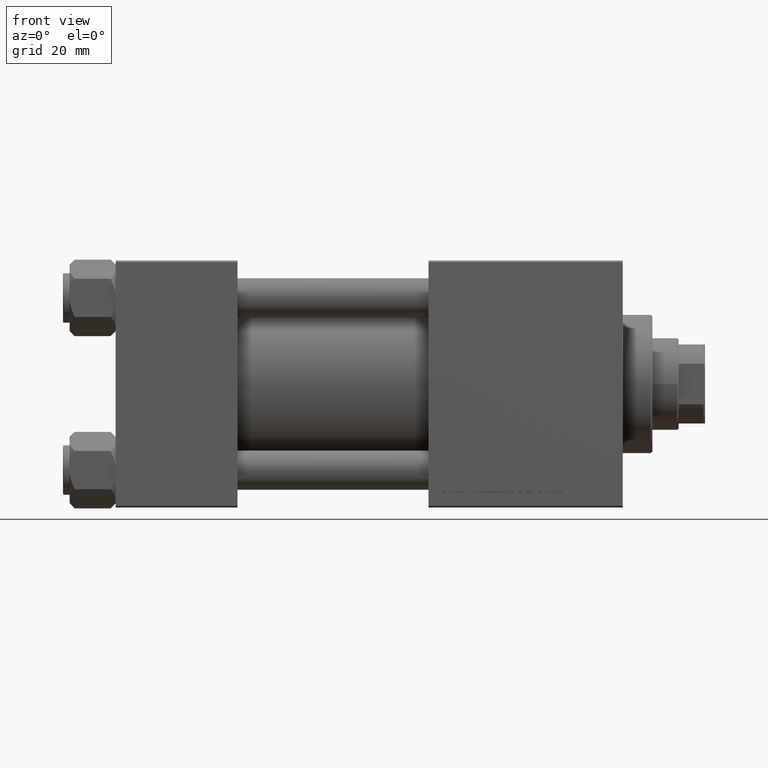
[diagram: clean part render]
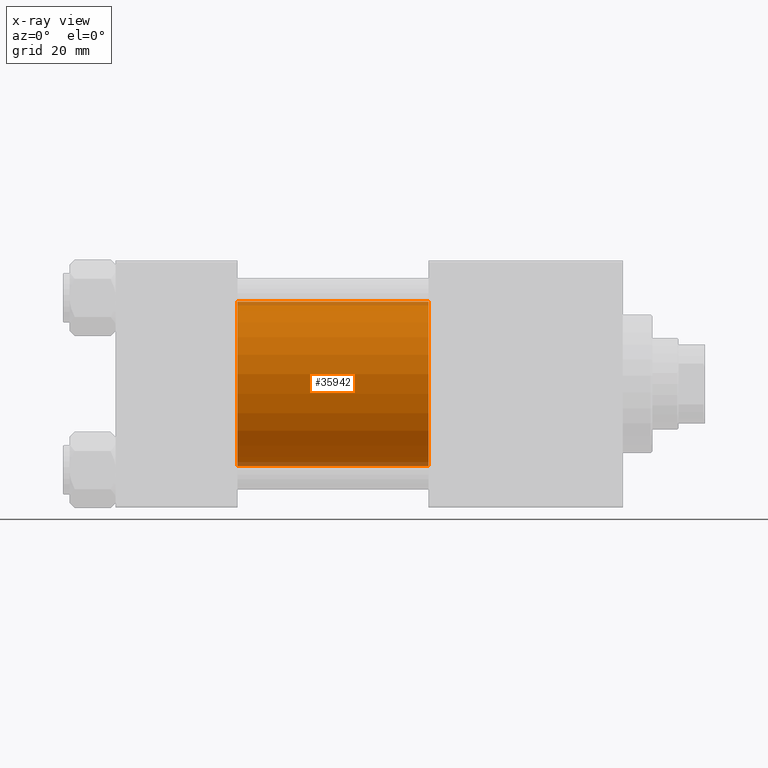
[diagram: x-ray — body ghosted, one internal face saturated and labeled with its STEP entity id]
A machine part, front view, then the same camera in x-ray: the body is ghosted and one INTERNAL B-rep face — a face not visible from any outside direction — is saturated and labeled: STEP entity #35942.
In plain terms, the highlighted cylindrical surface (partial cylindrical patch) has radius 25 mm, axis along (-1, -0, -0).
Its self-contained STEP definition (entity closure, byte-faithful):
#145 = CARTESIAN_POINT ( 'NONE',  ( 95.00000000000000000, -2.602085213965210642E-15, 25.00000000000000000 ) ) ;
#1905 = AXIS2_PLACEMENT_3D ( 'NONE', #34452, #14852, #38787 ) ;
#6624 = LINE ( 'NONE', #22924, #11768 ) ;
#8886 = DIRECTION ( 'NONE',  ( 0.000000000000000000, 0.000000000000000000, 1.000000000000000000 ) ) ;
#9353 = VECTOR ( 'NONE', #45801, 1000.000000000000000 ) ;
#11768 = VECTOR ( 'NONE', #18858, 1000.000000000000000 ) ;
#14852 = DIRECTION ( 'NONE',  ( 1.000000000000000000, 0.000000000000000000, 0.000000000000000000 ) ) ;
#15512 = VERTEX_POINT ( 'NONE', #42343 ) ;
#16144 = ORIENTED_EDGE ( 'NONE', *, *, #48350, .F. ) ;
#16166 = AXIS2_PLACEMENT_3D ( 'NONE', #24176, #16543, #8886 ) ;
#16284 = FACE_OUTER_BOUND ( 'NONE', #40164, .T. ) ;
#16543 = DIRECTION ( 'NONE',  ( -1.000000000000000000, -0.000000000000000000, -0.000000000000000000 ) ) ;
#18588 = LINE ( 'NONE', #145, #9353 ) ;
#18858 = DIRECTION ( 'NONE',  ( -1.000000000000000000, -0.000000000000000000, -0.000000000000000000 ) ) ;
#21633 = CARTESIAN_POINT ( 'NONE',  ( 37.00000000000000000, -2.602085213965210642E-15, 25.00000000000000000 ) ) ;
#21816 = CARTESIAN_POINT ( 'NONE',  ( 95.00000000000000000, 4.595317839031718093E-16, -25.00000000000000000 ) ) ;
#22513 = EDGE_CURVE ( 'NONE', #25567, #36231, #23863, .T. ) ;
#22770 = DIRECTION ( 'NONE',  ( 0.000000000000000000, 0.000000000000000000, -1.000000000000000000 ) ) ;
#22924 = CARTESIAN_POINT ( 'NONE',  ( 95.00000000000000000, 4.595317839031718093E-16, -25.00000000000000000 ) ) ;
#23863 = CIRCLE ( 'NONE', #1905, 25.00000000000000000 ) ;
#24176 = CARTESIAN_POINT ( 'NONE',  ( 95.00000000000000000, -2.602085213965210642E-15, 0.000000000000000000 ) ) ;
#25366 = VERTEX_POINT ( 'NONE', #21633 ) ;
#25567 = VERTEX_POINT ( 'NONE', #32017 ) ;
#26412 = EDGE_CURVE ( 'NONE', #25567, #25366, #18588, .T. ) ;
#28041 = ORIENTED_EDGE ( 'NONE', *, *, #26412, .F. ) ;
#28679 = ORIENTED_EDGE ( 'NONE', *, *, #45475, .T. ) ;
#31820 = CYLINDRICAL_SURFACE ( 'NONE', #16166, 25.00000000000000000 ) ;
#32017 = CARTESIAN_POINT ( 'NONE',  ( 95.00000000000000000, -2.602085213965210642E-15, 25.00000000000000000 ) ) ;
#33726 = CARTESIAN_POINT ( 'NONE',  ( 37.00000000000000000, -2.602085213965210642E-15, 0.000000000000000000 ) ) ;
#34452 = CARTESIAN_POINT ( 'NONE',  ( 95.00000000000000000, -2.602085213965210642E-15, 0.000000000000000000 ) ) ;
#35942 = ADVANCED_FACE ( 'NONE', ( #16284 ), #31820, .F. ) ;
#36231 = VERTEX_POINT ( 'NONE', #21816 ) ;
#37800 = DIRECTION ( 'NONE',  ( 1.000000000000000000, 0.000000000000000000, 0.000000000000000000 ) ) ;
#37861 = CIRCLE ( 'NONE', #44363, 25.00000000000000000 ) ;
#38787 = DIRECTION ( 'NONE',  ( 0.000000000000000000, 0.000000000000000000, -1.000000000000000000 ) ) ;
#40164 = EDGE_LOOP ( 'NONE', ( #41429, #28679, #16144, #28041 ) ) ;
#41429 = ORIENTED_EDGE ( 'NONE', *, *, #22513, .T. ) ;
#42343 = CARTESIAN_POINT ( 'NONE',  ( 37.00000000000000000, 4.595317839031718093E-16, -25.00000000000000000 ) ) ;
#44363 = AXIS2_PLACEMENT_3D ( 'NONE', #33726, #37800, #22770 ) ;
#45475 = EDGE_CURVE ( 'NONE', #36231, #15512, #6624, .T. ) ;
#45801 = DIRECTION ( 'NONE',  ( -1.000000000000000000, -0.000000000000000000, -0.000000000000000000 ) ) ;
#48350 = EDGE_CURVE ( 'NONE', #25366, #15512, #37861, .T. ) ;